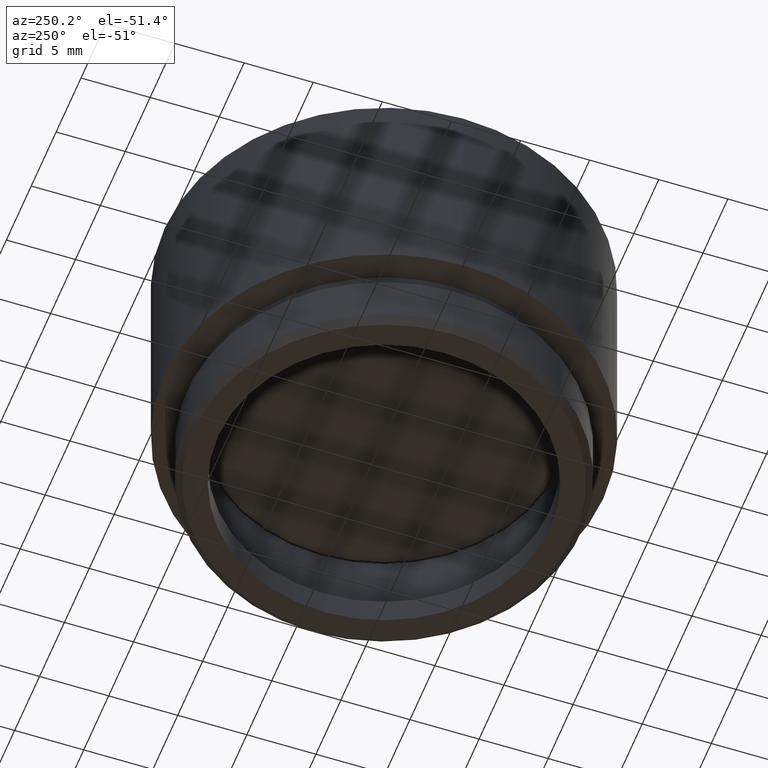
[diagram: clean part render]
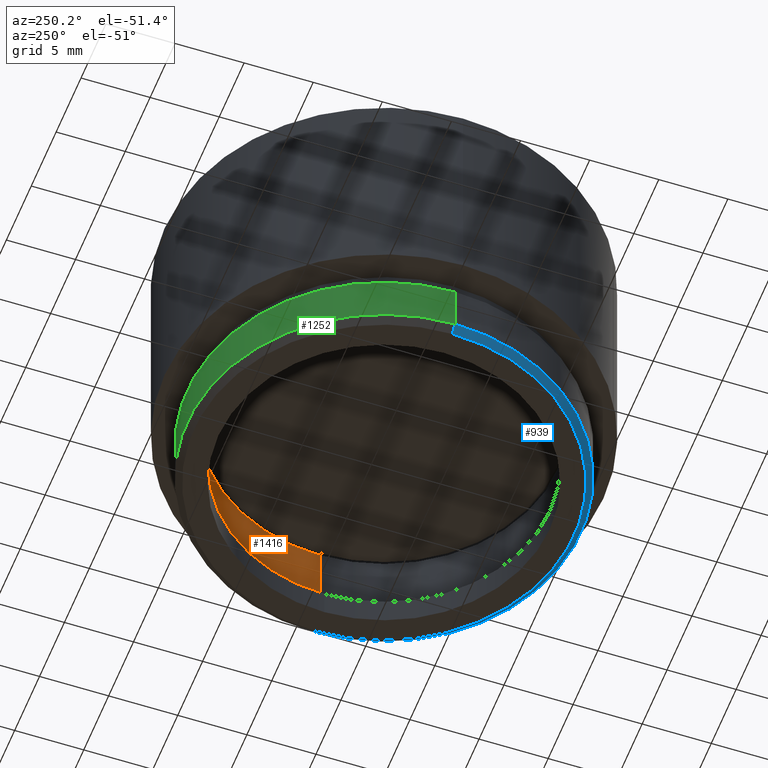
[diagram: same view with three faces highlighted in distinct colors, each labeled with its STEP entity id]
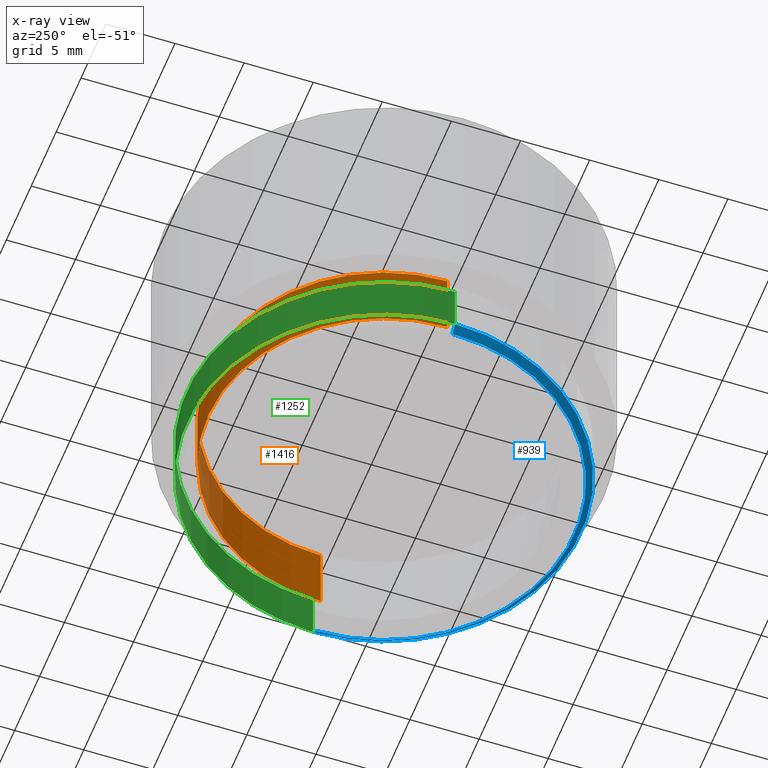
[diagram: x-ray of the same camera — body ghosted, the three highlighted faces saturated]
A machine part, auxiliary view with three faces highlighted in distinct colors.
The next image is the same camera in x-ray (body ghosted, the three faces saturated) — at least one of them is partly hidden behind the body in this view.
Their STEP definitions:

[orange] entity #1416 — the highlighted cylindrical surface (partial cylindrical patch) has radius 12.7 mm, axis along (0, 0, 1).
#12 = CARTESIAN_POINT ( 'NONE',  ( -12.69999999999999929, 1.555301434917138433E-15, 1.999999999999997335 ) ) ;
#53 = VERTEX_POINT ( 'NONE', #1490 ) ;
#107 = DIRECTION ( 'NONE',  ( 0.000000000000000000, 0.000000000000000000, 1.000000000000000000 ) ) ;
#127 = CARTESIAN_POINT ( 'NONE',  ( 0.000000000000000000, 0.000000000000000000, 6.999999999999997335 ) ) ;
#136 = CARTESIAN_POINT ( 'NONE',  ( 12.69999999999999929, 0.000000000000000000, 1.999999999999997335 ) ) ;
#138 = EDGE_CURVE ( 'NONE', #1403, #53, #766, .T. ) ;
#265 = EDGE_CURVE ( 'NONE', #879, #53, #655, .T. ) ;
#280 = AXIS2_PLACEMENT_3D ( 'NONE', #480, #107, #629 ) ;
#333 = ORIENTED_EDGE ( 'NONE', *, *, #138, .F. ) ;
#363 = DIRECTION ( 'NONE',  ( -0.000000000000000000, -0.000000000000000000, 1.000000000000000000 ) ) ;
#366 = ORIENTED_EDGE ( 'NONE', *, *, #1296, .T. ) ;
#400 = DIRECTION ( 'NONE',  ( 0.000000000000000000, 0.000000000000000000, 1.000000000000000000 ) ) ;
#411 = CYLINDRICAL_SURFACE ( 'NONE', #866, 12.69999999999999929 ) ;
#480 = CARTESIAN_POINT ( 'NONE',  ( 0.000000000000000000, 0.000000000000000000, 1.999999999999997335 ) ) ;
#501 = EDGE_LOOP ( 'NONE', ( #333, #1050, #366, #1465 ) ) ;
#570 = EDGE_CURVE ( 'NONE', #1330, #1403, #1323, .T. ) ;
#629 = DIRECTION ( 'NONE',  ( 1.000000000000000000, 0.000000000000000000, 0.000000000000000000 ) ) ;
#655 = CIRCLE ( 'NONE', #1289, 12.69999999999999929 ) ;
#766 = LINE ( 'NONE', #1013, #1422 ) ;
#773 = LINE ( 'NONE', #1538, #1004 ) ;
#866 = AXIS2_PLACEMENT_3D ( 'NONE', #934, #1533, #1528 ) ;
#879 = VERTEX_POINT ( 'NONE', #1040 ) ;
#932 = DIRECTION ( 'NONE',  ( 1.000000000000000000, 0.000000000000000000, 0.000000000000000000 ) ) ;
#934 = CARTESIAN_POINT ( 'NONE',  ( 0.000000000000000000, 0.000000000000000000, 1.999999999999997335 ) ) ;
#1004 = VECTOR ( 'NONE', #1026, 1000.000000000000000 ) ;
#1013 = CARTESIAN_POINT ( 'NONE',  ( -12.69999999999999929, 1.555301434917138433E-15, 1.999999999999997335 ) ) ;
#1026 = DIRECTION ( 'NONE',  ( -0.000000000000000000, -0.000000000000000000, 1.000000000000000000 ) ) ;
#1040 = CARTESIAN_POINT ( 'NONE',  ( 12.69999999999999929, 0.000000000000000000, 6.999999999999997335 ) ) ;
#1050 = ORIENTED_EDGE ( 'NONE', *, *, #570, .F. ) ;
#1289 = AXIS2_PLACEMENT_3D ( 'NONE', #127, #400, #932 ) ;
#1296 = EDGE_CURVE ( 'NONE', #1330, #879, #773, .T. ) ;
#1323 = CIRCLE ( 'NONE', #280, 12.69999999999999929 ) ;
#1330 = VERTEX_POINT ( 'NONE', #136 ) ;
#1403 = VERTEX_POINT ( 'NONE', #12 ) ;
#1416 = ADVANCED_FACE ( 'NONE', ( #1604 ), #411, .F. ) ;
#1422 = VECTOR ( 'NONE', #363, 1000.000000000000000 ) ;
#1465 = ORIENTED_EDGE ( 'NONE', *, *, #265, .T. ) ;
#1490 = CARTESIAN_POINT ( 'NONE',  ( -12.69999999999999929, 1.555301434917138433E-15, 6.999999999999997335 ) ) ;
#1528 = DIRECTION ( 'NONE',  ( 1.000000000000000000, 0.000000000000000000, 0.000000000000000000 ) ) ;
#1533 = DIRECTION ( 'NONE',  ( -0.000000000000000000, -0.000000000000000000, 1.000000000000000000 ) ) ;
#1538 = CARTESIAN_POINT ( 'NONE',  ( 12.69999999999999929, 0.000000000000000000, 1.999999999999997335 ) ) ;
#1604 = FACE_OUTER_BOUND ( 'NONE', #501, .T. ) ;

[blue] entity #939 — the highlighted conical surface has half-angle 45 deg.
#49 = AXIS2_PLACEMENT_3D ( 'NONE', #475, #902, #999 ) ;
#96 = LINE ( 'NONE', #628, #1485 ) ;
#109 = CARTESIAN_POINT ( 'NONE',  ( 13.74999999999999112, 0.000000000000000000, 0.000000000000000000 ) ) ;
#120 = ORIENTED_EDGE ( 'NONE', *, *, #1532, .T. ) ;
#141 = DIRECTION ( 'NONE',  ( 1.000000000000000000, 0.000000000000000000, 0.000000000000000000 ) ) ;
#145 = EDGE_LOOP ( 'NONE', ( #699, #742, #120, #386 ) ) ;
#147 = LINE ( 'NONE', #295, #595 ) ;
#232 = EDGE_CURVE ( 'NONE', #1010, #1650, #1397, .T. ) ;
#295 = CARTESIAN_POINT ( 'NONE',  ( 13.74999999999999112, 0.000000000000000000, 0.000000000000000000 ) ) ;
#350 = CARTESIAN_POINT ( 'NONE',  ( 14.25000000000000000, 1.745121688784978228E-15, 0.5000000000000038858 ) ) ;
#386 = ORIENTED_EDGE ( 'NONE', *, *, #232, .F. ) ;
#409 = CARTESIAN_POINT ( 'NONE',  ( 0.000000000000000000, 0.000000000000000000, 0.5000000000000038858 ) ) ;
#413 = DIRECTION ( 'NONE',  ( 0.7071067811865512365, 0.000000000000000000, 0.7071067811865439090 ) ) ;
#475 = CARTESIAN_POINT ( 'NONE',  ( 0.000000000000000000, 0.000000000000000000, 0.000000000000000000 ) ) ;
#526 = DIRECTION ( 'NONE',  ( 0.000000000000000000, 0.000000000000000000, 1.000000000000000000 ) ) ;
#539 = VERTEX_POINT ( 'NONE', #651 ) ;
#595 = VECTOR ( 'NONE', #413, 1000.000000000000000 ) ;
#628 = CARTESIAN_POINT ( 'NONE',  ( -13.74999999999999112, 1.683889348827609668E-15, 0.000000000000000000 ) ) ;
#651 = CARTESIAN_POINT ( 'NONE',  ( -13.74999999999999112, 1.714505518806294046E-15, 0.000000000000000000 ) ) ;
#652 = AXIS2_PLACEMENT_3D ( 'NONE', #409, #526, #141 ) ;
#663 = CIRCLE ( 'NONE', #49, 13.74999999999999112 ) ;
#699 = ORIENTED_EDGE ( 'NONE', *, *, #1282, .F. ) ;
#742 = ORIENTED_EDGE ( 'NONE', *, *, #1579, .F. ) ;
#748 = DIRECTION ( 'NONE',  ( 1.000000000000000000, 0.000000000000000000, 0.000000000000000000 ) ) ;
#770 = VERTEX_POINT ( 'NONE', #109 ) ;
#892 = DIRECTION ( 'NONE',  ( -0.7071067811865512365, 8.659560562354978464E-17, 0.7071067811865439090 ) ) ;
#902 = DIRECTION ( 'NONE',  ( -0.000000000000000000, -0.000000000000000000, -1.000000000000000000 ) ) ;
#939 = ADVANCED_FACE ( 'NONE', ( #1130 ), #1610, .T. ) ;
#999 = DIRECTION ( 'NONE',  ( 1.000000000000000000, 0.000000000000000000, 0.000000000000000000 ) ) ;
#1010 = VERTEX_POINT ( 'NONE', #1478 ) ;
#1130 = FACE_OUTER_BOUND ( 'NONE', #145, .T. ) ;
#1224 = AXIS2_PLACEMENT_3D ( 'NONE', #1560, #1668, #748 ) ;
#1282 = EDGE_CURVE ( 'NONE', #539, #1010, #96, .T. ) ;
#1397 = CIRCLE ( 'NONE', #652, 14.25000000000000000 ) ;
#1478 = CARTESIAN_POINT ( 'NONE',  ( -14.25000000000000000, 0.000000000000000000, 0.5000000000000038858 ) ) ;
#1485 = VECTOR ( 'NONE', #892, 1000.000000000000000 ) ;
#1532 = EDGE_CURVE ( 'NONE', #770, #1650, #147, .T. ) ;
#1560 = CARTESIAN_POINT ( 'NONE',  ( 0.000000000000000000, 0.000000000000000000, 0.000000000000000000 ) ) ;
#1579 = EDGE_CURVE ( 'NONE', #770, #539, #663, .T. ) ;
#1610 = CONICAL_SURFACE ( 'NONE', #1224, 13.74999999999999112, 0.7853981633974533860 ) ;
#1650 = VERTEX_POINT ( 'NONE', #350 ) ;
#1668 = DIRECTION ( 'NONE',  ( 0.000000000000000000, 0.000000000000000000, 1.000000000000000000 ) ) ;

[green] entity #1252 — the highlighted cylindrical surface (partial cylindrical patch) has radius 14.25 mm, axis along (-0, -0, -1).
#30 = DIRECTION ( 'NONE',  ( -1.000000000000000000, 0.000000000000000000, 0.000000000000000000 ) ) ;
#58 = EDGE_CURVE ( 'NONE', #565, #1682, #119, .T. ) ;
#97 = CIRCLE ( 'NONE', #1353, 14.25000000000000000 ) ;
#99 = LINE ( 'NONE', #1646, #753 ) ;
#119 = CIRCLE ( 'NONE', #807, 14.25000000000000000 ) ;
#124 = EDGE_CURVE ( 'NONE', #1682, #1650, #99, .T. ) ;
#137 = ORIENTED_EDGE ( 'NONE', *, *, #975, .F. ) ;
#274 = LINE ( 'NONE', #1325, #648 ) ;
#301 = CARTESIAN_POINT ( 'NONE',  ( 0.000000000000000000, 0.000000000000000000, 4.000000000000000000 ) ) ;
#350 = CARTESIAN_POINT ( 'NONE',  ( 14.25000000000000000, 1.745121688784978228E-15, 0.5000000000000038858 ) ) ;
#371 = FACE_OUTER_BOUND ( 'NONE', #1249, .T. ) ;
#464 = CARTESIAN_POINT ( 'NONE',  ( 14.25000000000000000, 1.745121688784978228E-15, 4.000000000000000000 ) ) ;
#565 = VERTEX_POINT ( 'NONE', #1001 ) ;
#605 = CARTESIAN_POINT ( 'NONE',  ( 0.000000000000000000, 0.000000000000000000, 5.000000000000000000 ) ) ;
#632 = DIRECTION ( 'NONE',  ( -0.000000000000000000, -0.000000000000000000, -1.000000000000000000 ) ) ;
#648 = VECTOR ( 'NONE', #1046, 1000.000000000000000 ) ;
#694 = DIRECTION ( 'NONE',  ( 0.000000000000000000, 0.000000000000000000, -1.000000000000000000 ) ) ;
#753 = VECTOR ( 'NONE', #632, 1000.000000000000000 ) ;
#807 = AXIS2_PLACEMENT_3D ( 'NONE', #301, #694, #30 ) ;
#863 = AXIS2_PLACEMENT_3D ( 'NONE', #605, #1685, #1664 ) ;
#945 = ORIENTED_EDGE ( 'NONE', *, *, #58, .T. ) ;
#975 = EDGE_CURVE ( 'NONE', #565, #1010, #274, .T. ) ;
#990 = CYLINDRICAL_SURFACE ( 'NONE', #863, 14.25000000000000000 ) ;
#1001 = CARTESIAN_POINT ( 'NONE',  ( -14.25000000000000000, 0.000000000000000000, 4.000000000000000000 ) ) ;
#1010 = VERTEX_POINT ( 'NONE', #1478 ) ;
#1046 = DIRECTION ( 'NONE',  ( -0.000000000000000000, -0.000000000000000000, -1.000000000000000000 ) ) ;
#1075 = DIRECTION ( 'NONE',  ( 1.000000000000000000, 0.000000000000000000, 0.000000000000000000 ) ) ;
#1126 = ORIENTED_EDGE ( 'NONE', *, *, #124, .T. ) ;
#1249 = EDGE_LOOP ( 'NONE', ( #945, #1126, #1530, #137 ) ) ;
#1252 = ADVANCED_FACE ( 'NONE', ( #371 ), #990, .T. ) ;
#1325 = CARTESIAN_POINT ( 'NONE',  ( -14.25000000000000000, 0.000000000000000000, 5.000000000000000000 ) ) ;
#1353 = AXIS2_PLACEMENT_3D ( 'NONE', #1463, #1357, #1075 ) ;
#1357 = DIRECTION ( 'NONE',  ( 0.000000000000000000, 0.000000000000000000, 1.000000000000000000 ) ) ;
#1391 = EDGE_CURVE ( 'NONE', #1650, #1010, #97, .T. ) ;
#1463 = CARTESIAN_POINT ( 'NONE',  ( 0.000000000000000000, 0.000000000000000000, 0.5000000000000038858 ) ) ;
#1478 = CARTESIAN_POINT ( 'NONE',  ( -14.25000000000000000, 0.000000000000000000, 0.5000000000000038858 ) ) ;
#1530 = ORIENTED_EDGE ( 'NONE', *, *, #1391, .T. ) ;
#1646 = CARTESIAN_POINT ( 'NONE',  ( 14.25000000000000000, 1.745121688784978228E-15, 5.000000000000000000 ) ) ;
#1650 = VERTEX_POINT ( 'NONE', #350 ) ;
#1664 = DIRECTION ( 'NONE',  ( -1.000000000000000000, 0.000000000000000000, 0.000000000000000000 ) ) ;
#1682 = VERTEX_POINT ( 'NONE', #464 ) ;
#1685 = DIRECTION ( 'NONE',  ( -0.000000000000000000, -0.000000000000000000, -1.000000000000000000 ) ) ;